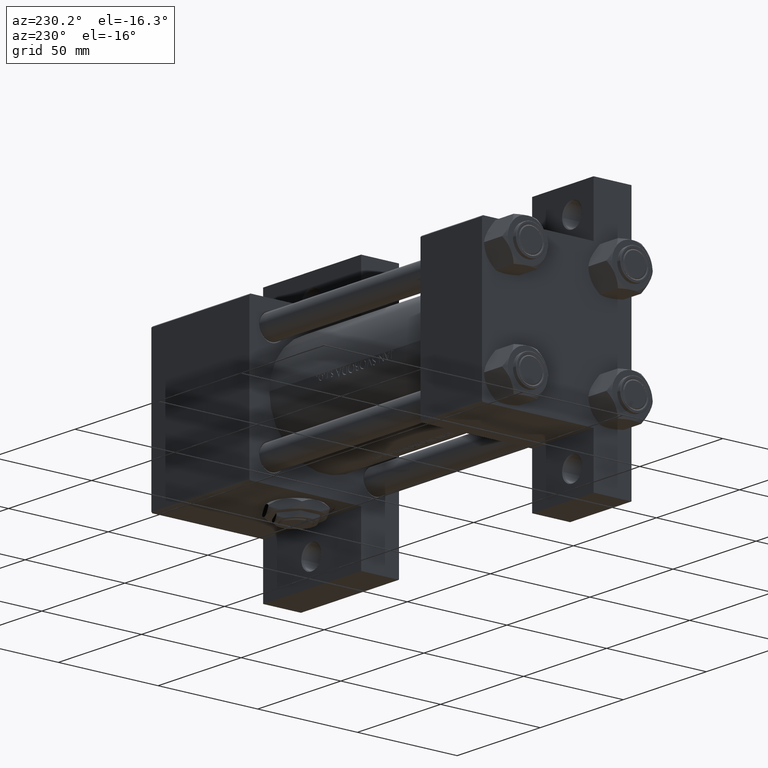
[diagram: clean part render]
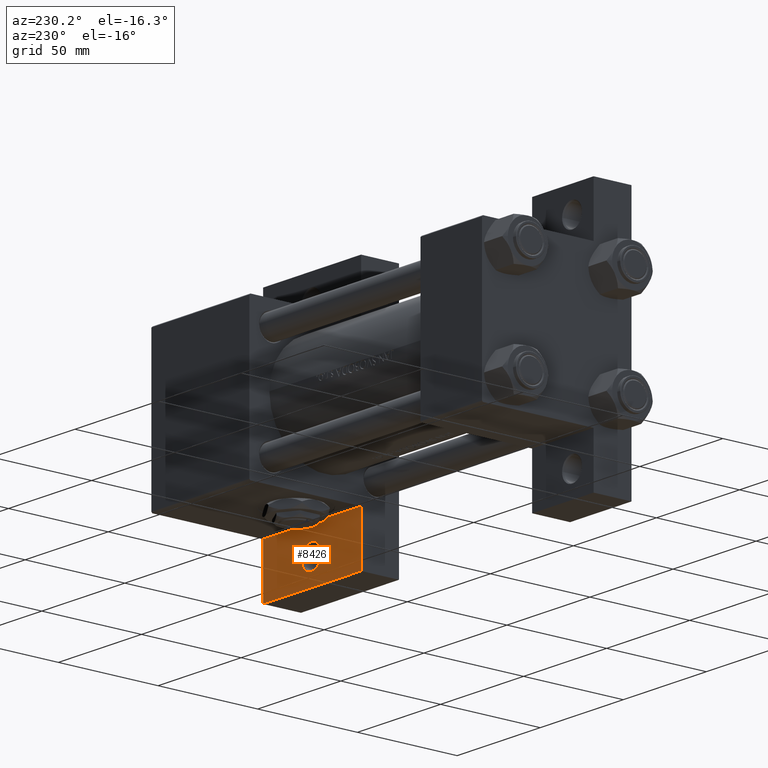
[diagram: same view with one face highlighted and labeled with its STEP entity id]
A machine part, auxiliary view. The second image highlights one B-rep face of the part: STEP entity #8426.
In plain terms, the highlighted planar face has unit normal (0, 1, 0).
Its self-contained STEP definition (entity closure, byte-faithful):
#129 = VECTOR ( 'NONE', #8956, 1000.000000000000000 ) ;
#603 = CARTESIAN_POINT ( 'NONE',  ( 169.9999999999999716, 51.00000000000000000, -18.50000000000000000 ) ) ;
#765 = VECTOR ( 'NONE', #31684, 1000.000000000000000 ) ;
#932 = VERTEX_POINT ( 'NONE', #48360 ) ;
#4144 = AXIS2_PLACEMENT_3D ( 'NONE', #19936, #35093, #28116 ) ;
#4379 = CARTESIAN_POINT ( 'NONE',  ( 139.9999999999999716, 37.50000000000000000, -18.50000000000000355 ) ) ;
#4627 = CARTESIAN_POINT ( 'NONE',  ( 164.0004999999999882, 51.00000000000000000, -18.50000000000000000 ) ) ;
#4637 = ORIENTED_EDGE ( 'NONE', *, *, #8485, .T. ) ;
#4914 = CARTESIAN_POINT ( 'NONE',  ( 0.000000000000000000, 0.000000000000000000, -18.50000000000000000 ) ) ;
#4974 = LINE ( 'NONE', #20657, #129 ) ;
#5159 = FACE_OUTER_BOUND ( 'NONE', #42320, .T. ) ;
#5531 = LINE ( 'NONE', #35891, #40013 ) ;
#5673 = DIRECTION ( 'NONE',  ( 1.000000000000000000, 4.704334850106593822E-16, 0.000000000000000000 ) ) ;
#5732 = EDGE_LOOP ( 'NONE', ( #4637, #45715 ) ) ;
#6005 = EDGE_CURVE ( 'NONE', #40814, #37399, #6687, .T. ) ;
#6687 = LINE ( 'NONE', #21878, #765 ) ;
#8426 = ADVANCED_FACE ( 'NONE', ( #8897, #5159 ), #12385, .T. ) ;
#8485 = EDGE_CURVE ( 'NONE', #8659, #42123, #30252, .T. ) ;
#8659 = VERTEX_POINT ( 'NONE', #19848 ) ;
#8806 = AXIS2_PLACEMENT_3D ( 'NONE', #4914, #46492, #42750 ) ;
#8897 = FACE_BOUND ( 'NONE', #5732, .T. ) ;
#8956 = DIRECTION ( 'NONE',  ( -1.000000000000000000, 3.528251137579945613E-16, -0.000000000000000000 ) ) ;
#9667 = CARTESIAN_POINT ( 'NONE',  ( 140.0000000000000000, 63.49999999999997158, -18.50000000000000000 ) ) ;
#10458 = EDGE_CURVE ( 'NONE', #932, #40814, #4974, .T. ) ;
#11351 = EDGE_CURVE ( 'NONE', #42123, #8659, #26380, .T. ) ;
#12385 = PLANE ( 'NONE',  #8806 ) ;
#15794 = DIRECTION ( 'NONE',  ( -0.000000000000000000, -0.000000000000000000, -1.000000000000000000 ) ) ;
#16517 = ORIENTED_EDGE ( 'NONE', *, *, #19070, .F. ) ;
#16611 = ORIENTED_EDGE ( 'NONE', *, *, #23026, .F. ) ;
#17628 = LINE ( 'NONE', #9667, #18761 ) ;
#18761 = VECTOR ( 'NONE', #5673, 1000.000000000000000 ) ;
#19070 = EDGE_CURVE ( 'NONE', #26303, #932, #5531, .T. ) ;
#19848 = CARTESIAN_POINT ( 'NONE',  ( 175.9994999999999834, 51.00000000000000000, -18.50000000000000000 ) ) ;
#19936 = CARTESIAN_POINT ( 'NONE',  ( 169.9999999999999716, 51.00000000000000000, -18.50000000000000000 ) ) ;
#20657 = CARTESIAN_POINT ( 'NONE',  ( 139.9999999999999716, 37.50000000000000000, -18.50000000000000000 ) ) ;
#21878 = CARTESIAN_POINT ( 'NONE',  ( 140.0000000000000000, 63.49999999999997158, -18.50000000000000000 ) ) ;
#23026 = EDGE_CURVE ( 'NONE', #37399, #26303, #17628, .T. ) ;
#23512 = DIRECTION ( 'NONE',  ( 1.000000000000000000, 0.000000000000000000, 0.000000000000000000 ) ) ;
#26303 = VERTEX_POINT ( 'NONE', #26594 ) ;
#26380 = CIRCLE ( 'NONE', #4144, 5.999499999999990507 ) ;
#26594 = CARTESIAN_POINT ( 'NONE',  ( 199.0000000000000284, 63.50000000000000000, -18.50000000000000000 ) ) ;
#28116 = DIRECTION ( 'NONE',  ( 1.000000000000000000, 0.000000000000000000, 0.000000000000000000 ) ) ;
#30252 = CIRCLE ( 'NONE', #42981, 5.999499999999990507 ) ;
#31684 = DIRECTION ( 'NONE',  ( 1.067522139062651657E-15, 1.000000000000000000, -0.000000000000000000 ) ) ;
#31888 = ORIENTED_EDGE ( 'NONE', *, *, #6005, .F. ) ;
#32077 = CARTESIAN_POINT ( 'NONE',  ( 140.0000000000000000, 63.49999999999997158, -18.50000000000000000 ) ) ;
#34915 = DIRECTION ( 'NONE',  ( -1.067522139062649685E-15, -1.000000000000000000, 0.000000000000000000 ) ) ;
#35093 = DIRECTION ( 'NONE',  ( -0.000000000000000000, -0.000000000000000000, -1.000000000000000000 ) ) ;
#35891 = CARTESIAN_POINT ( 'NONE',  ( 199.0000000000000284, 63.50000000000000000, -18.50000000000000000 ) ) ;
#37399 = VERTEX_POINT ( 'NONE', #32077 ) ;
#40013 = VECTOR ( 'NONE', #34915, 1000.000000000000000 ) ;
#40814 = VERTEX_POINT ( 'NONE', #4379 ) ;
#42123 = VERTEX_POINT ( 'NONE', #4627 ) ;
#42320 = EDGE_LOOP ( 'NONE', ( #31888, #47690, #16517, #16611 ) ) ;
#42750 = DIRECTION ( 'NONE',  ( 1.000000000000000000, 0.000000000000000000, -0.000000000000000000 ) ) ;
#42981 = AXIS2_PLACEMENT_3D ( 'NONE', #603, #15794, #23512 ) ;
#45715 = ORIENTED_EDGE ( 'NONE', *, *, #11351, .T. ) ;
#46492 = DIRECTION ( 'NONE',  ( 0.000000000000000000, 0.000000000000000000, 1.000000000000000000 ) ) ;
#47690 = ORIENTED_EDGE ( 'NONE', *, *, #10458, .F. ) ;
#48360 = CARTESIAN_POINT ( 'NONE',  ( 199.0000000000000000, 37.49999999999997868, -18.50000000000000000 ) ) ;